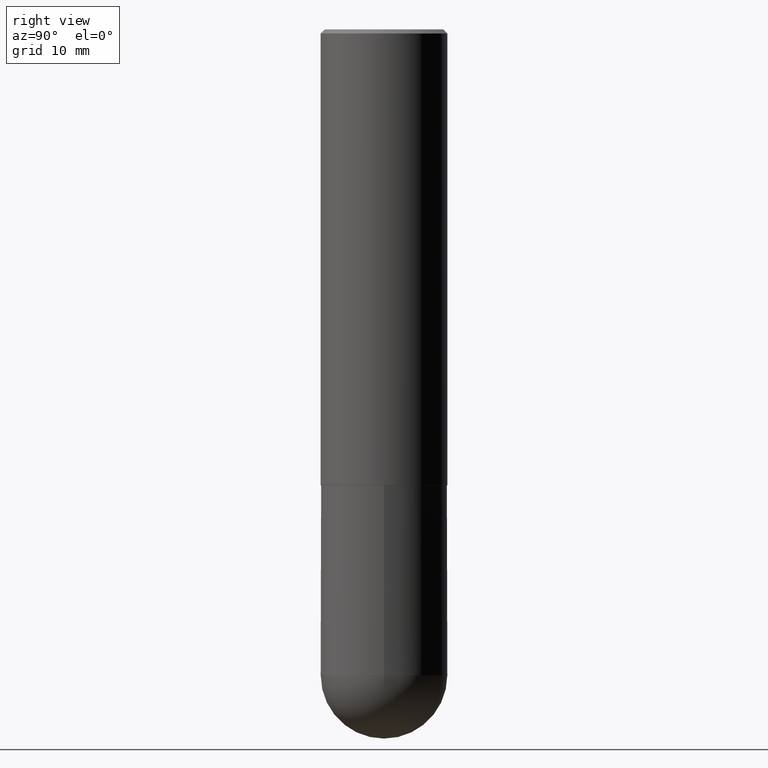
[diagram: clean part render]
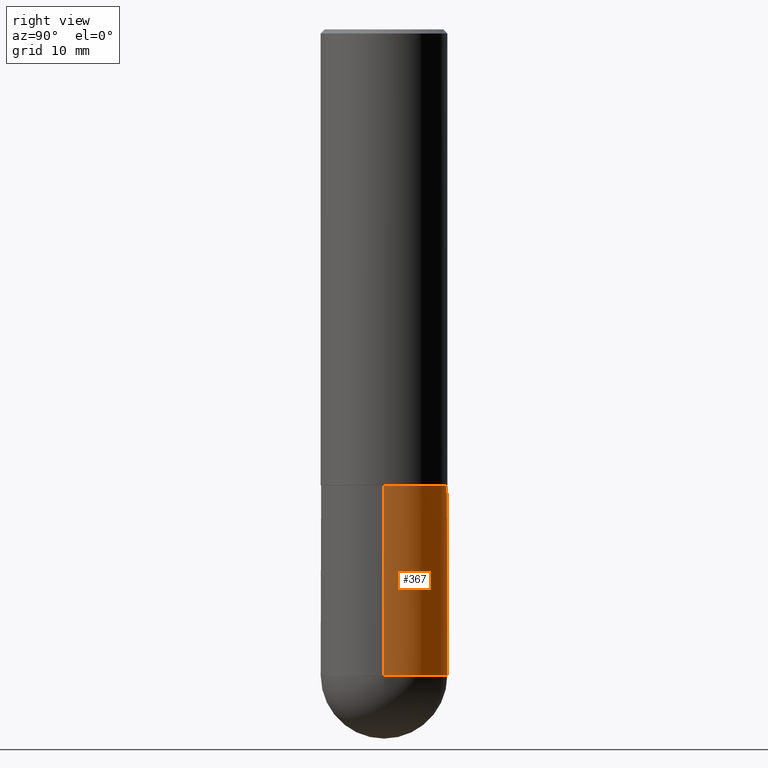
[diagram: same view with one face highlighted and labeled with its STEP entity id]
A machine part, right view. The second image highlights one B-rep face of the part: STEP entity #367.
In plain terms, the highlighted cylindrical surface (partial cylindrical patch) has radius 7.9375 mm, axis along (-0, 0, 1).
Its self-contained STEP definition (entity closure, byte-faithful):
#17 = EDGE_CURVE ( 'NONE', #136, #217, #318, .T. ) ;
#19 = VECTOR ( 'NONE', #320, 39.37007874015748143 ) ;
#34 = ORIENTED_EDGE ( 'NONE', *, *, #61, .T. ) ;
#40 = VERTEX_POINT ( 'NONE', #49 ) ;
#49 = CARTESIAN_POINT ( 'NONE',  ( -0.3125000000000000000, -7.272018840729490833E-15, -3.187500000000000000 ) ) ;
#61 = EDGE_CURVE ( 'NONE', #271, #40, #64, .T. ) ;
#64 = CIRCLE ( 'NONE', #86, 0.3125000000000000000 ) ;
#83 = EDGE_LOOP ( 'NONE', ( #34, #175, #332, #310, #242 ) ) ;
#86 = AXIS2_PLACEMENT_3D ( 'NONE', #88, #272, #394 ) ;
#88 = CARTESIAN_POINT ( 'NONE',  ( 7.794931819715121781E-29, -1.112909676756252622E-14, -3.187500000000000000 ) ) ;
#94 = CARTESIAN_POINT ( 'NONE',  ( 7.794931819715121781E-29, -1.112909676756252622E-14, -3.187500000000000000 ) ) ;
#99 = CARTESIAN_POINT ( 'NONE',  ( -0.3125000000000000000, -7.272018840729487678E-15, -2.249999999999999556 ) ) ;
#103 = CYLINDRICAL_SURFACE ( 'NONE', #148, 0.3125000000000000000 ) ;
#110 = CIRCLE ( 'NONE', #327, 0.3125000000000000000 ) ;
#133 = DIRECTION ( 'NONE',  ( 1.000000000000000000, -6.982962677686269077E-15, 0.000000000000000000 ) ) ;
#136 = VERTEX_POINT ( 'NONE', #412 ) ;
#147 = VECTOR ( 'NONE', #279, 39.37007874015748143 ) ;
#148 = AXIS2_PLACEMENT_3D ( 'NONE', #300, #296, #234 ) ;
#151 = CARTESIAN_POINT ( 'NONE',  ( 0.3125000000000000000, -2.182175836776958347E-15, 1.523805242436230075E-29 ) ) ;
#163 = LINE ( 'NONE', #287, #19 ) ;
#175 = ORIENTED_EDGE ( 'NONE', *, *, #176, .T. ) ;
#176 = EDGE_CURVE ( 'NONE', #40, #299, #163, .T. ) ;
#209 = EDGE_CURVE ( 'NONE', #217, #299, #110, .T. ) ;
#213 = AXIS2_PLACEMENT_3D ( 'NONE', #94, #381, #356 ) ;
#217 = VERTEX_POINT ( 'NONE', #385 ) ;
#230 = DIRECTION ( 'NONE',  ( -2.445468806185136597E-29, 3.491481338843145583E-15, 1.000000000000000000 ) ) ;
#234 = DIRECTION ( 'NONE',  ( 1.000000000000000000, -6.982962677686266711E-15, 4.876176775795936353E-29 ) ) ;
#237 = EDGE_CURVE ( 'NONE', #136, #271, #277, .T. ) ;
#242 = ORIENTED_EDGE ( 'NONE', *, *, #237, .T. ) ;
#271 = VERTEX_POINT ( 'NONE', #331 ) ;
#272 = DIRECTION ( 'NONE',  ( -2.445468806185136597E-29, 3.491481338843145583E-15, 1.000000000000000000 ) ) ;
#277 = CIRCLE ( 'NONE', #213, 0.3125000000000000000 ) ;
#279 = DIRECTION ( 'NONE',  ( -2.445468806185136877E-29, 3.491481338843145188E-15, 1.000000000000000000 ) ) ;
#287 = CARTESIAN_POINT ( 'NONE',  ( -0.3125000000000000000, 2.220446049250313081E-15, -1.537167215704658232E-29 ) ) ;
#296 = DIRECTION ( 'NONE',  ( -2.445468806185136597E-29, 3.491481338843145583E-15, 1.000000000000000000 ) ) ;
#299 = VERTEX_POINT ( 'NONE', #99 ) ;
#300 = CARTESIAN_POINT ( 'NONE',  ( 0.000000000000000000, 0.000000000000000000, 0.000000000000000000 ) ) ;
#310 = ORIENTED_EDGE ( 'NONE', *, *, #17, .F. ) ;
#318 = LINE ( 'NONE', #151, #147 ) ;
#320 = DIRECTION ( 'NONE',  ( -2.445468806185136877E-29, 3.491481338843145188E-15, 1.000000000000000000 ) ) ;
#327 = AXIS2_PLACEMENT_3D ( 'NONE', #411, #230, #133 ) ;
#331 = CARTESIAN_POINT ( 'NONE',  ( 2.182175836777035261E-15, 0.3124999999999887867, -3.187500000000000888 ) ) ;
#332 = ORIENTED_EDGE ( 'NONE', *, *, #209, .F. ) ;
#356 = DIRECTION ( 'NONE',  ( 1.000000000000000000, -6.982962677686269077E-15, 0.000000000000000000 ) ) ;
#367 = ADVANCED_FACE ( 'NONE', ( #388 ), #103, .T. ) ;
#381 = DIRECTION ( 'NONE',  ( -2.445468806185136597E-29, 3.491481338843145583E-15, 1.000000000000000000 ) ) ;
#385 = CARTESIAN_POINT ( 'NONE',  ( 0.3125000000000000000, -1.003800884917403522E-14, -2.249999999999999556 ) ) ;
#388 = FACE_OUTER_BOUND ( 'NONE', #83, .T. ) ;
#394 = DIRECTION ( 'NONE',  ( 1.000000000000000000, -6.982962677686269077E-15, 0.000000000000000000 ) ) ;
#411 = CARTESIAN_POINT ( 'NONE',  ( 5.502304813916556222E-29, -7.855833012397076871E-15, -2.249999999999999556 ) ) ;
#412 = CARTESIAN_POINT ( 'NONE',  ( 0.3125000000000000000, -1.167464072675676384E-14, -3.187500000000000000 ) ) ;